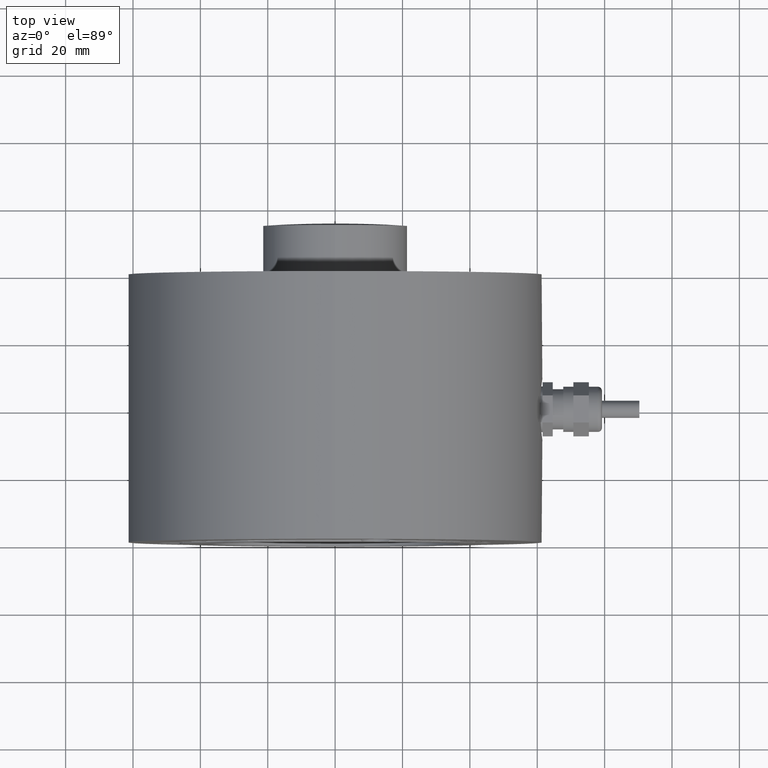
[diagram: clean part render]
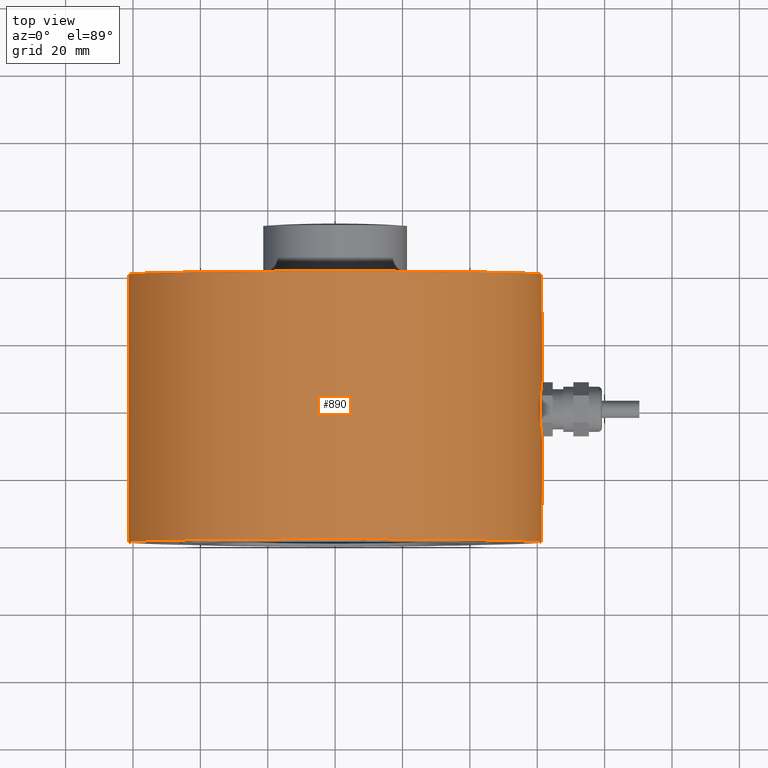
[diagram: same view with one face highlighted and labeled with its STEP entity id]
A machine part, top view. The second image highlights one B-rep face of the part: STEP entity #890.
In plain terms, the highlighted cylindrical surface (bore or boss wall) has radius 61.5 mm, axis along (0, -1, 0).
Its self-contained STEP definition (entity closure, byte-faithful):
#48=FACE_BOUND('',#124,.T.);
#66=B_SPLINE_CURVE_WITH_KNOTS('',3,(#1389,#1390,#1391,#1392,#1393,#1394,
#1395,#1396,#1397,#1398,#1399,#1400,#1401,#1402,#1403,#1404,#1405,#1406),
 .UNSPECIFIED.,.F.,.F.,(4,2,2,2,2,2,2,2,4),(2.71633813829455,3.05588308458716,
3.39542803087976,3.73496761916079,4.07450720744183,4.41404679572286,4.75358638400389,
5.09313133029649,5.4326762765891),.UNSPECIFIED.);
#67=B_SPLINE_CURVE_WITH_KNOTS('',3,(#1407,#1408,#1409,#1410,#1411,#1412,
#1413,#1414,#1415,#1416,#1417,#1418,#1419,#1420,#1421,#1422,#1423,#1424),
 .UNSPECIFIED.,.F.,.F.,(4,2,2,2,2,2,2,2,4),(5.4326762765891,5.77222122288171,
6.11176616917431,6.45130575745535,6.79084534573638,7.13038493401741,7.46992452229844,
7.80946946859104,8.14901441488365),.UNSPECIFIED.);
#74=FACE_OUTER_BOUND('',#123,.T.);
#123=EDGE_LOOP('',(#604,#605,#606,#607,#608,#609));
#124=EDGE_LOOP('',(#610,#611));
#190=LINE('',#1383,#242);
#242=VECTOR('',#1084,61.5);
#294=CIRCLE('',#954,61.5);
#295=CIRCLE('',#955,61.5);
#296=CIRCLE('',#956,61.5);
#297=CIRCLE('',#957,61.5);
#369=VERTEX_POINT('',#1378);
#370=VERTEX_POINT('',#1379);
#371=VERTEX_POINT('',#1382);
#372=VERTEX_POINT('',#1384);
#373=VERTEX_POINT('',#1387);
#374=VERTEX_POINT('',#1388);
#469=EDGE_CURVE('',#369,#370,#294,.T.);
#470=EDGE_CURVE('',#370,#369,#295,.T.);
#471=EDGE_CURVE('',#370,#371,#190,.T.);
#472=EDGE_CURVE('',#371,#372,#296,.T.);
#473=EDGE_CURVE('',#372,#371,#297,.T.);
#474=EDGE_CURVE('',#373,#374,#66,.T.);
#475=EDGE_CURVE('',#374,#373,#67,.T.);
#604=ORIENTED_EDGE('',*,*,#469,.F.);
#605=ORIENTED_EDGE('',*,*,#470,.F.);
#606=ORIENTED_EDGE('',*,*,#471,.T.);
#607=ORIENTED_EDGE('',*,*,#472,.T.);
#608=ORIENTED_EDGE('',*,*,#473,.T.);
#609=ORIENTED_EDGE('',*,*,#471,.F.);
#610=ORIENTED_EDGE('',*,*,#474,.F.);
#611=ORIENTED_EDGE('',*,*,#475,.F.);
#874=CYLINDRICAL_SURFACE('',#953,61.5);
#890=ADVANCED_FACE('',(#74,#48),#874,.T.);
#953=AXIS2_PLACEMENT_3D('',#1377,#1078,#1079);
#954=AXIS2_PLACEMENT_3D('',#1380,#1080,#1081);
#955=AXIS2_PLACEMENT_3D('',#1381,#1082,#1083);
#956=AXIS2_PLACEMENT_3D('',#1385,#1085,#1086);
#957=AXIS2_PLACEMENT_3D('',#1386,#1087,#1088);
#1078=DIRECTION('center_axis',(0.,-1.,0.));
#1079=DIRECTION('ref_axis',(0.,0.,-1.));
#1080=DIRECTION('center_axis',(0.,-1.,0.));
#1081=DIRECTION('ref_axis',(0.,0.,-1.));
#1082=DIRECTION('center_axis',(0.,-1.,0.));
#1083=DIRECTION('ref_axis',(0.,0.,-1.));
#1084=DIRECTION('',(0.,1.,0.));
#1085=DIRECTION('center_axis',(0.,-1.,0.));
#1086=DIRECTION('ref_axis',(0.,0.,-1.));
#1087=DIRECTION('center_axis',(0.,-1.,0.));
#1088=DIRECTION('ref_axis',(0.,0.,-1.));
#1377=CARTESIAN_POINT('Origin',(0.,0.,0.));
#1378=CARTESIAN_POINT('',(0.,0.5,-61.5));
#1379=CARTESIAN_POINT('',(-7.53157781475622E-15,0.5,61.5));
#1380=CARTESIAN_POINT('Origin',(0.,0.5,0.));
#1381=CARTESIAN_POINT('Origin',(0.,0.5,0.));
#1382=CARTESIAN_POINT('',(-7.53157781475622E-15,80.,61.5));
#1383=CARTESIAN_POINT('',(-7.53157781475622E-15,0.,61.5));
#1384=CARTESIAN_POINT('',(0.,80.,-61.5));
#1385=CARTESIAN_POINT('Origin',(0.,80.,0.));
#1386=CARTESIAN_POINT('Origin',(0.,80.,0.));
#1387=CARTESIAN_POINT('',(60.8378993720198,40.,-9.));
#1388=CARTESIAN_POINT('',(60.8378993720198,40.,9.));
#1389=CARTESIAN_POINT('Ctrl Pts',(60.8378993720198,40.,-9.));
#1390=CARTESIAN_POINT('Ctrl Pts',(60.8378993720198,41.131816487642,-9.));
#1391=CARTESIAN_POINT('Ctrl Pts',(60.87274626088,42.3379459232989,-8.77347291526954));
#1392=CARTESIAN_POINT('Ctrl Pts',(60.9981316787507,44.554868434884,-7.85448878253419));
#1393=CARTESIAN_POINT('Ctrl Pts',(61.0868070813654,45.5658027817444,-7.16211927961344));
#1394=CARTESIAN_POINT('Ctrl Pts',(61.2528826329122,47.1621066846943,-5.56581537666355));
#1395=CARTESIAN_POINT('Ctrl Pts',(61.3411418713774,47.8544860665097,-4.5548755893091));
#1396=CARTESIAN_POINT('Ctrl Pts',(61.4655728019468,48.773477394337,-2.33793451577498));
#1397=CARTESIAN_POINT('Ctrl Pts',(61.5,49.,-1.13179862760344));
#1398=CARTESIAN_POINT('Ctrl Pts',(61.5,49.,1.13179862760343));
#1399=CARTESIAN_POINT('Ctrl Pts',(61.4655728019468,48.773477394337,2.33793451577498));
#1400=CARTESIAN_POINT('Ctrl Pts',(61.3411418713774,47.8544860665097,4.5548755893091));
#1401=CARTESIAN_POINT('Ctrl Pts',(61.2528826329122,47.1621066846943,5.56581537666354));
#1402=CARTESIAN_POINT('Ctrl Pts',(61.0868070813654,45.5658027817444,7.16211927961344));
#1403=CARTESIAN_POINT('Ctrl Pts',(60.9981316787507,44.5548684348841,7.85448878253419));
#1404=CARTESIAN_POINT('Ctrl Pts',(60.87274626088,42.3379459232989,8.77347291526955));
#1405=CARTESIAN_POINT('Ctrl Pts',(60.8378993720198,41.131816487642,9.));
#1406=CARTESIAN_POINT('Ctrl Pts',(60.8378993720198,40.,9.));
#1407=CARTESIAN_POINT('Ctrl Pts',(60.8378993720198,40.,9.));
#1408=CARTESIAN_POINT('Ctrl Pts',(60.8378993720198,38.868183512358,9.));
#1409=CARTESIAN_POINT('Ctrl Pts',(60.87274626088,37.6620540767011,8.77347291526955));
#1410=CARTESIAN_POINT('Ctrl Pts',(60.9981316787507,35.445131565116,7.8544887825342));
#1411=CARTESIAN_POINT('Ctrl Pts',(61.0868070813654,34.4341972182556,7.16211927961344));
#1412=CARTESIAN_POINT('Ctrl Pts',(61.2528826329122,32.8378933153057,5.56581537666354));
#1413=CARTESIAN_POINT('Ctrl Pts',(61.3411418713774,32.1455139334903,4.5548755893091));
#1414=CARTESIAN_POINT('Ctrl Pts',(61.4655728019468,31.226522605663,2.33793451577498));
#1415=CARTESIAN_POINT('Ctrl Pts',(61.5,31.,1.13179862760343));
#1416=CARTESIAN_POINT('Ctrl Pts',(61.5,31.,-1.13179862760344));
#1417=CARTESIAN_POINT('Ctrl Pts',(61.4655728019468,31.226522605663,-2.33793451577499));
#1418=CARTESIAN_POINT('Ctrl Pts',(61.3411418713774,32.1455139334903,-4.5548755893091));
#1419=CARTESIAN_POINT('Ctrl Pts',(61.2528826329122,32.8378933153057,-5.56581537666355));
#1420=CARTESIAN_POINT('Ctrl Pts',(61.0868070813654,34.4341972182556,-7.16211927961344));
#1421=CARTESIAN_POINT('Ctrl Pts',(60.9981316787507,35.445131565116,-7.8544887825342));
#1422=CARTESIAN_POINT('Ctrl Pts',(60.87274626088,37.6620540767011,-8.77347291526955));
#1423=CARTESIAN_POINT('Ctrl Pts',(60.8378993720198,38.868183512358,-9.));
#1424=CARTESIAN_POINT('Ctrl Pts',(60.8378993720198,40.,-9.));